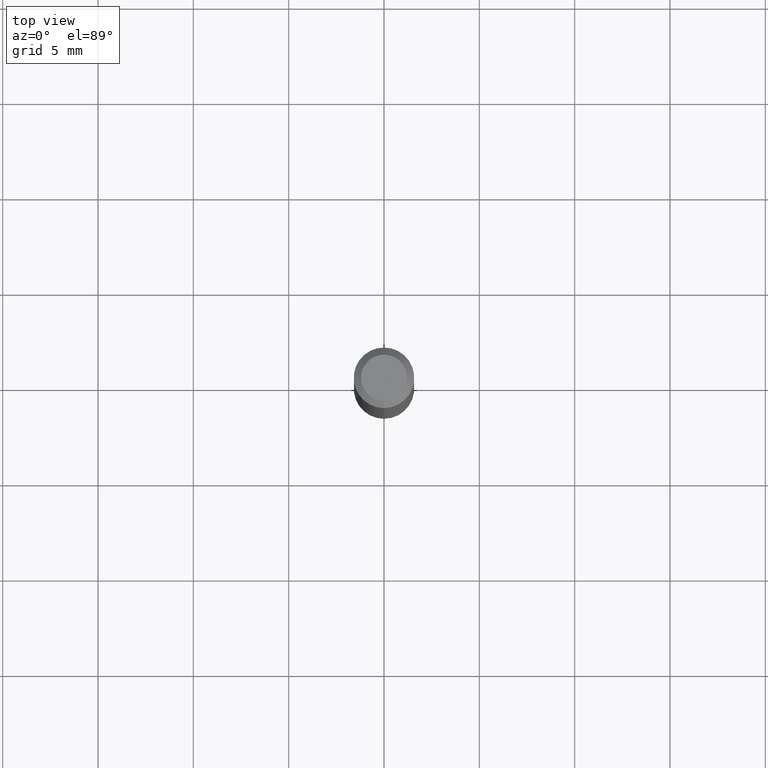
[diagram: clean part render]
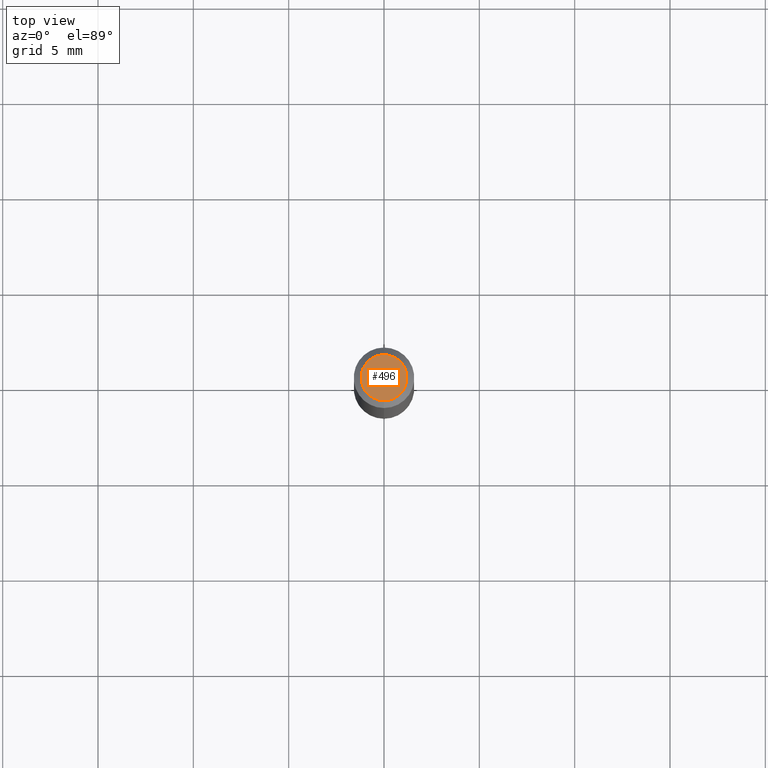
[diagram: same view with one face highlighted and labeled with its STEP entity id]
A machine part, top view. The second image highlights one B-rep face of the part: STEP entity #496.
In plain terms, the highlighted planar face has unit normal (0, -0, -1).
Its self-contained STEP definition (entity closure, byte-faithful):
#7 = DIRECTION ( 'NONE',  ( 6.982962677686265922E-15, 1.000000000000000000, -3.491449284820591431E-15 ) ) ;
#15 = ORIENTED_EDGE ( 'NONE', *, *, #381, .T. ) ;
#40 = DIRECTION ( 'NONE',  ( -2.445491189389452753E-29, 3.491449284820591825E-15, 1.000000000000000000 ) ) ;
#50 = FACE_OUTER_BOUND ( 'NONE', #107, .T. ) ;
#71 = CARTESIAN_POINT ( 'NONE',  ( -6.680672965038082494E-45, 9.538055564095452696E-31, 2.731832768003550085E-16 ) ) ;
#76 = CARTESIAN_POINT ( 'NONE',  ( 3.840629472727447874E-16, 0.04750000000000000749, 1.073394357713768884E-16 ) ) ;
#107 = EDGE_LOOP ( 'NONE', ( #286, #15 ) ) ;
#158 = DIRECTION ( 'NONE',  ( -2.445491189389452753E-29, 3.491449284820591825E-15, 1.000000000000000000 ) ) ;
#171 = CIRCLE ( 'NONE', #296, 0.04750000000000000749 ) ;
#187 = CARTESIAN_POINT ( 'NONE',  ( -6.680672965038082494E-45, 9.538055564095452696E-31, 2.731832768003550085E-16 ) ) ;
#190 = CARTESIAN_POINT ( 'NONE',  ( -3.773273898774340269E-16, -0.04750000000000000749, 4.390271178293331409E-16 ) ) ;
#226 = DIRECTION ( 'NONE',  ( -6.982962677686265133E-15, -1.000000000000000000, 3.491449284820591825E-15 ) ) ;
#245 = CARTESIAN_POINT ( 'NONE',  ( 3.316907271900976589E-16, 0.04750000000000000749, -2.925220262880061582E-17 ) ) ;
#286 = ORIENTED_EDGE ( 'NONE', *, *, #452, .T. ) ;
#296 = AXIS2_PLACEMENT_3D ( 'NONE', #187, #158, #511 ) ;
#369 = VERTEX_POINT ( 'NONE', #76 ) ;
#373 = DIRECTION ( 'NONE',  ( 2.445491189389452753E-29, -3.491449284820591431E-15, -1.000000000000000000 ) ) ;
#376 = AXIS2_PLACEMENT_3D ( 'NONE', #71, #40, #226 ) ;
#381 = EDGE_CURVE ( 'NONE', #446, #369, #171, .T. ) ;
#446 = VERTEX_POINT ( 'NONE', #190 ) ;
#447 = PLANE ( 'NONE',  #513 ) ;
#452 = EDGE_CURVE ( 'NONE', #369, #446, #469, .T. ) ;
#469 = CIRCLE ( 'NONE', #376, 0.04750000000000000749 ) ;
#496 = ADVANCED_FACE ( 'NONE', ( #50 ), #447, .F. ) ;
#511 = DIRECTION ( 'NONE',  ( -6.982962677686265133E-15, -1.000000000000000000, 3.491449284820591825E-15 ) ) ;
#513 = AXIS2_PLACEMENT_3D ( 'NONE', #245, #373, #7 ) ;